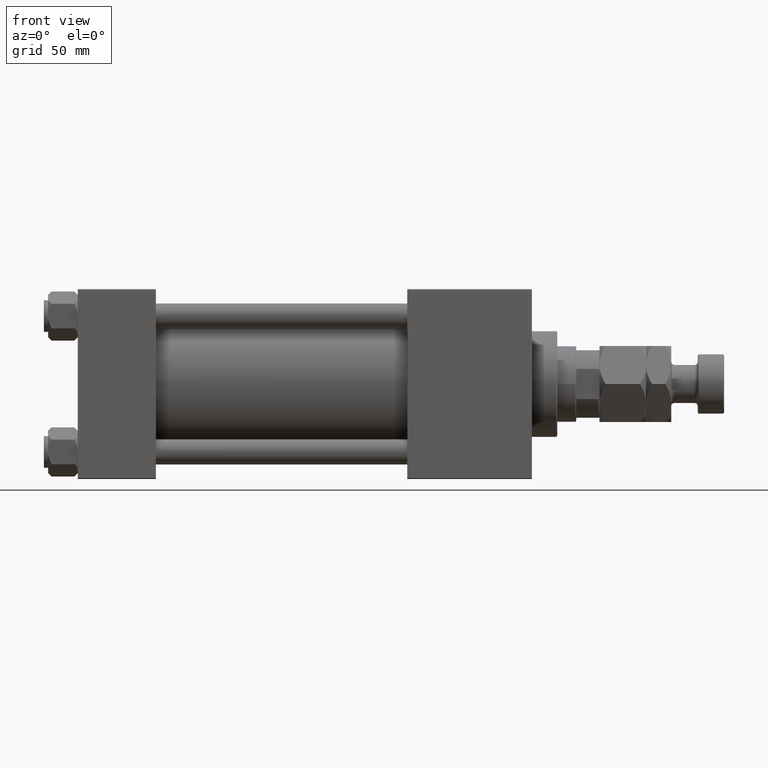
[diagram: clean part render]
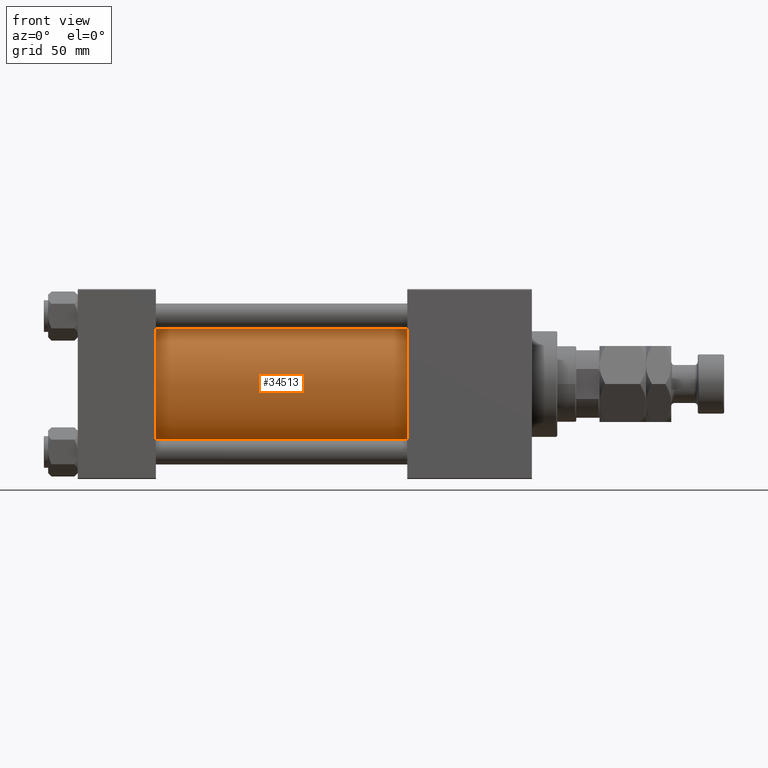
[diagram: same view with one face highlighted and labeled with its STEP entity id]
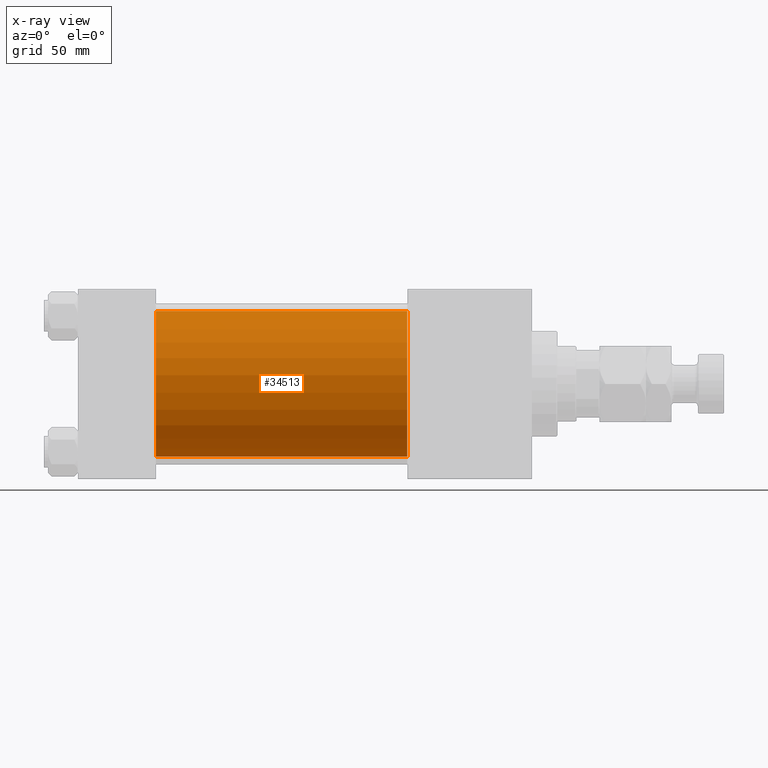
[diagram: x-ray of the same camera — body ghosted, the highlighted face saturated]
A machine part, front view. The second image highlights one B-rep face of the part: STEP entity #34513.
The next image is the same camera in x-ray: the body ghosted, the highlighted face saturated — about 0% of this face is hidden behind the body in this view.
In plain terms, the highlighted cylindrical surface (partial cylindrical patch) has radius 34.5 mm, axis along (-1, -0, -0).
Its self-contained STEP definition (entity closure, byte-faithful):
#902 = VERTEX_POINT ( 'NONE', #43645 ) ;
#1873 = LINE ( 'NONE', #9502, #2254 ) ;
#2254 = VECTOR ( 'NONE', #33925, 1000.000000000000000 ) ;
#3312 = VERTEX_POINT ( 'NONE', #33676 ) ;
#4999 = DIRECTION ( 'NONE',  ( 1.000000000000000000, -0.000000000000000000, 0.000000000000000000 ) ) ;
#5826 = ORIENTED_EDGE ( 'NONE', *, *, #23498, .F. ) ;
#6590 = DIRECTION ( 'NONE',  ( -1.000000000000000000, -0.000000000000000000, -0.000000000000000000 ) ) ;
#8645 = VERTEX_POINT ( 'NONE', #49038 ) ;
#9502 = CARTESIAN_POINT ( 'NONE',  ( 156.0000000000000000, 1.622946243093158675E-15, -34.50000000000000000 ) ) ;
#10253 = CARTESIAN_POINT ( 'NONE',  ( 156.0000000000000000, -2.602085213965210642E-15, 34.50000000000000000 ) ) ;
#10405 = AXIS2_PLACEMENT_3D ( 'NONE', #36770, #33619, #29149 ) ;
#10794 = DIRECTION ( 'NONE',  ( 0.000000000000000000, 0.000000000000000000, 1.000000000000000000 ) ) ;
#12989 = EDGE_CURVE ( 'NONE', #902, #3312, #38615, .T. ) ;
#14187 = DIRECTION ( 'NONE',  ( -1.000000000000000000, -0.000000000000000000, -0.000000000000000000 ) ) ;
#15506 = CYLINDRICAL_SURFACE ( 'NONE', #50097, 34.50000000000000000 ) ;
#17849 = ORIENTED_EDGE ( 'NONE', *, *, #12989, .T. ) ;
#23498 = EDGE_CURVE ( 'NONE', #902, #8645, #26348, .T. ) ;
#26348 = CIRCLE ( 'NONE', #10405, 34.50000000000000000 ) ;
#27083 = FACE_OUTER_BOUND ( 'NONE', #29841, .T. ) ;
#29149 = DIRECTION ( 'NONE',  ( 0.000000000000000000, 0.000000000000000000, -1.000000000000000000 ) ) ;
#29337 = AXIS2_PLACEMENT_3D ( 'NONE', #42761, #4999, #41987 ) ;
#29841 = EDGE_LOOP ( 'NONE', ( #50686, #5826, #17849, #40397 ) ) ;
#30828 = VERTEX_POINT ( 'NONE', #42385 ) ;
#33604 = EDGE_CURVE ( 'NONE', #8645, #30828, #1873, .T. ) ;
#33619 = DIRECTION ( 'NONE',  ( 1.000000000000000000, 0.000000000000000000, 0.000000000000000000 ) ) ;
#33676 = CARTESIAN_POINT ( 'NONE',  ( 37.00000000000000711, -2.602085213965210642E-15, 34.50000000000000000 ) ) ;
#33925 = DIRECTION ( 'NONE',  ( -1.000000000000000000, -0.000000000000000000, -0.000000000000000000 ) ) ;
#34513 = ADVANCED_FACE ( 'NONE', ( #27083 ), #15506, .T. ) ;
#36770 = CARTESIAN_POINT ( 'NONE',  ( 156.0000000000000000, -2.602085213965210642E-15, 0.000000000000000000 ) ) ;
#38615 = LINE ( 'NONE', #10253, #48754 ) ;
#40239 = CIRCLE ( 'NONE', #29337, 34.50000000000000000 ) ;
#40397 = ORIENTED_EDGE ( 'NONE', *, *, #51108, .T. ) ;
#41987 = DIRECTION ( 'NONE',  ( 0.000000000000000000, 0.000000000000000000, 1.000000000000000000 ) ) ;
#42385 = CARTESIAN_POINT ( 'NONE',  ( 37.00000000000000711, 1.622946243093158675E-15, -34.50000000000000000 ) ) ;
#42761 = CARTESIAN_POINT ( 'NONE',  ( 37.00000000000000711, -2.602085213965210642E-15, 0.000000000000000000 ) ) ;
#43104 = CARTESIAN_POINT ( 'NONE',  ( 156.0000000000000000, -2.602085213965210642E-15, 0.000000000000000000 ) ) ;
#43645 = CARTESIAN_POINT ( 'NONE',  ( 156.0000000000000000, -2.602085213965210642E-15, 34.50000000000000000 ) ) ;
#48754 = VECTOR ( 'NONE', #14187, 1000.000000000000000 ) ;
#49038 = CARTESIAN_POINT ( 'NONE',  ( 156.0000000000000000, 1.622946243093158675E-15, -34.50000000000000000 ) ) ;
#50097 = AXIS2_PLACEMENT_3D ( 'NONE', #43104, #6590, #10794 ) ;
#50686 = ORIENTED_EDGE ( 'NONE', *, *, #33604, .F. ) ;
#51108 = EDGE_CURVE ( 'NONE', #3312, #30828, #40239, .T. ) ;